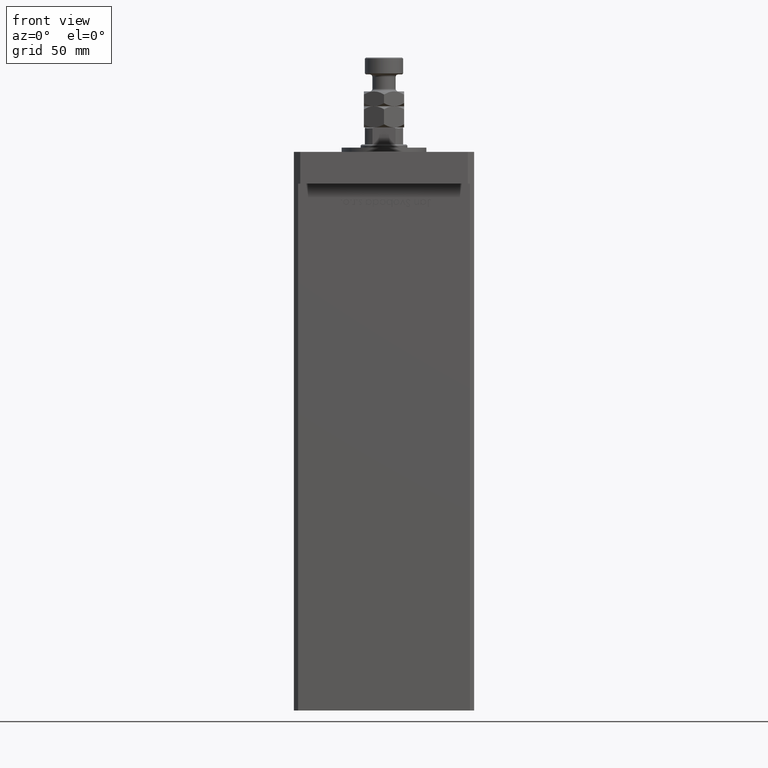
[diagram: clean part render]
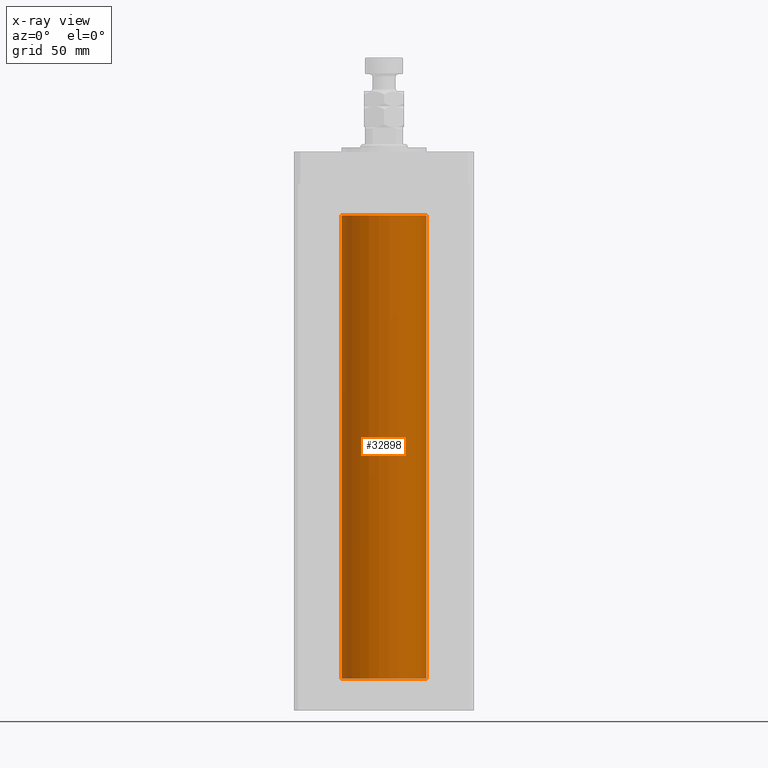
[diagram: x-ray — body ghosted, one internal face saturated and labeled with its STEP entity id]
A machine part, front view, then the same camera in x-ray: the body is ghosted and one INTERNAL B-rep face — a face not visible from any outside direction — is saturated and labeled: STEP entity #32898.
In plain terms, the highlighted cylindrical surface (partial cylindrical patch) has radius 20 mm, axis along (-0, -0, -1).
Its self-contained STEP definition (entity closure, byte-faithful):
#222 = FACE_OUTER_BOUND ( 'NONE', #14935, .T. ) ;
#1263 = EDGE_CURVE ( 'NONE', #30942, #49226, #13991, .T. ) ;
#2587 = CARTESIAN_POINT ( 'NONE',  ( 20.00000000000000000, 2.449293598294706513E-15, 218.5000000000000000 ) ) ;
#6190 = EDGE_CURVE ( 'NONE', #30942, #16436, #51399, .T. ) ;
#7004 = VECTOR ( 'NONE', #39629, 1000.000000000000000 ) ;
#10733 = CARTESIAN_POINT ( 'NONE',  ( 20.00000000000000000, 2.449293598294706513E-15, 0.000000000000000000 ) ) ;
#11742 = CIRCLE ( 'NONE', #21560, 20.00000000000000000 ) ;
#13991 = CIRCLE ( 'NONE', #25617, 20.00000000000000000 ) ;
#14199 = CARTESIAN_POINT ( 'NONE',  ( -20.00000000000000000, 0.000000000000000000, 218.5000000000000000 ) ) ;
#14784 = DIRECTION ( 'NONE',  ( 1.000000000000000000, 0.000000000000000000, 0.000000000000000000 ) ) ;
#14935 = EDGE_LOOP ( 'NONE', ( #35386, #23308, #31847, #39303 ) ) ;
#15774 = CARTESIAN_POINT ( 'NONE',  ( 0.000000000000000000, 0.000000000000000000, 0.000000000000000000 ) ) ;
#16436 = VERTEX_POINT ( 'NONE', #46911 ) ;
#17240 = CYLINDRICAL_SURFACE ( 'NONE', #43847, 20.00000000000000000 ) ;
#17515 = DIRECTION ( 'NONE',  ( -0.000000000000000000, -0.000000000000000000, -1.000000000000000000 ) ) ;
#17785 = EDGE_CURVE ( 'NONE', #16436, #20645, #11742, .T. ) ;
#20645 = VERTEX_POINT ( 'NONE', #10733 ) ;
#20798 = DIRECTION ( 'NONE',  ( -0.000000000000000000, 0.000000000000000000, 1.000000000000000000 ) ) ;
#21560 = AXIS2_PLACEMENT_3D ( 'NONE', #15774, #20798, #41498 ) ;
#23308 = ORIENTED_EDGE ( 'NONE', *, *, #38816, .T. ) ;
#24055 = DIRECTION ( 'NONE',  ( -0.000000000000000000, -0.000000000000000000, -1.000000000000000000 ) ) ;
#25571 = CARTESIAN_POINT ( 'NONE',  ( -20.00000000000000000, 0.000000000000000000, 218.5000000000000000 ) ) ;
#25617 = AXIS2_PLACEMENT_3D ( 'NONE', #31277, #52254, #14784 ) ;
#27965 = CARTESIAN_POINT ( 'NONE',  ( 20.00000000000000000, 2.449293598294706513E-15, 218.5000000000000000 ) ) ;
#27994 = VECTOR ( 'NONE', #24055, 1000.000000000000000 ) ;
#30942 = VERTEX_POINT ( 'NONE', #25571 ) ;
#31277 = CARTESIAN_POINT ( 'NONE',  ( 0.000000000000000000, 0.000000000000000000, 218.5000000000000000 ) ) ;
#31847 = ORIENTED_EDGE ( 'NONE', *, *, #17785, .F. ) ;
#32898 = ADVANCED_FACE ( 'NONE', ( #222 ), #17240, .F. ) ;
#35386 = ORIENTED_EDGE ( 'NONE', *, *, #1263, .T. ) ;
#38782 = DIRECTION ( 'NONE',  ( -1.000000000000000000, 0.000000000000000000, 0.000000000000000000 ) ) ;
#38816 = EDGE_CURVE ( 'NONE', #49226, #20645, #48939, .T. ) ;
#39303 = ORIENTED_EDGE ( 'NONE', *, *, #6190, .F. ) ;
#39629 = DIRECTION ( 'NONE',  ( -0.000000000000000000, -0.000000000000000000, -1.000000000000000000 ) ) ;
#41498 = DIRECTION ( 'NONE',  ( 1.000000000000000000, 0.000000000000000000, 0.000000000000000000 ) ) ;
#42975 = CARTESIAN_POINT ( 'NONE',  ( 0.000000000000000000, 0.000000000000000000, 218.5000000000000000 ) ) ;
#43847 = AXIS2_PLACEMENT_3D ( 'NONE', #42975, #17515, #38782 ) ;
#46911 = CARTESIAN_POINT ( 'NONE',  ( -20.00000000000000000, 0.000000000000000000, 0.000000000000000000 ) ) ;
#48939 = LINE ( 'NONE', #27965, #27994 ) ;
#49226 = VERTEX_POINT ( 'NONE', #2587 ) ;
#51399 = LINE ( 'NONE', #14199, #7004 ) ;
#52254 = DIRECTION ( 'NONE',  ( -0.000000000000000000, 0.000000000000000000, 1.000000000000000000 ) ) ;